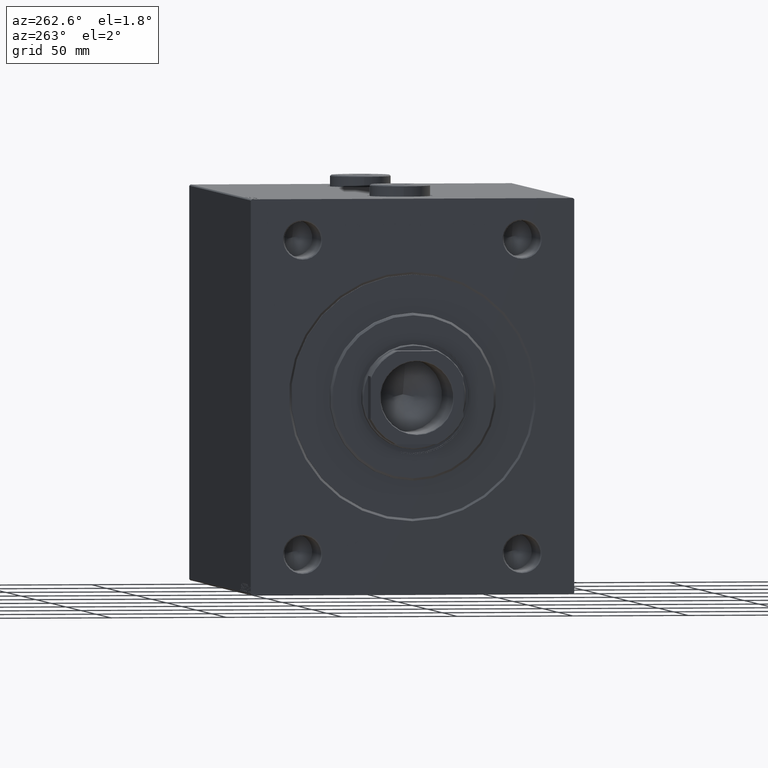
[diagram: clean part render]
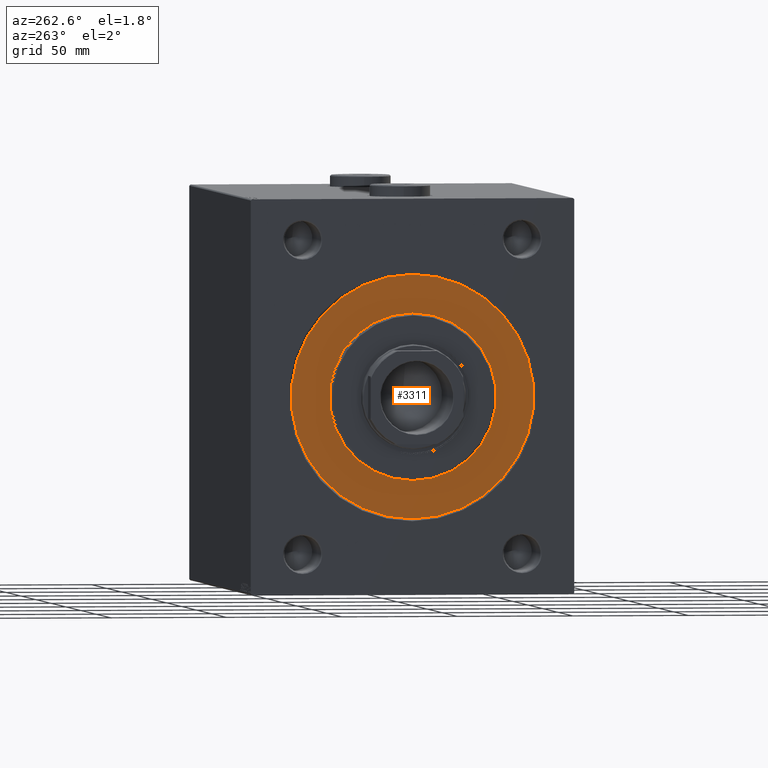
[diagram: same view with one face highlighted and labeled with its STEP entity id]
A machine part, auxiliary view. The second image highlights one B-rep face of the part: STEP entity #3311.
In plain terms, the highlighted planar face has unit normal (1, -0, -0).
Its self-contained STEP definition (entity closure, byte-faithful):
#1160 = CARTESIAN_POINT ( 'NONE',  ( 0.000000000000000000, 4.408728476930470856E-15, -36.00000000000000000 ) ) ;
#2428 = DIRECTION ( 'NONE',  ( 0.000000000000000000, 0.000000000000000000, 1.000000000000000000 ) ) ;
#3311 = ADVANCED_FACE ( 'NONE', ( #44478, #27367 ), #13514, .F. ) ;
#5350 = EDGE_LOOP ( 'NONE', ( #34686, #14675 ) ) ;
#7186 = CARTESIAN_POINT ( 'NONE',  ( 0.000000000000000000, 0.000000000000000000, -52.49999999999999289 ) ) ;
#7301 = DIRECTION ( 'NONE',  ( 0.000000000000000000, 0.000000000000000000, 1.000000000000000000 ) ) ;
#10866 = CIRCLE ( 'NONE', #19705, 52.49999999999999289 ) ;
#12819 = CARTESIAN_POINT ( 'NONE',  ( 0.000000000000000000, 0.000000000000000000, 0.000000000000000000 ) ) ;
#13114 = AXIS2_PLACEMENT_3D ( 'NONE', #39173, #14457, #39404 ) ;
#13514 = PLANE ( 'NONE',  #40665 ) ;
#14457 = DIRECTION ( 'NONE',  ( 1.000000000000000000, -0.000000000000000000, 0.000000000000000000 ) ) ;
#14675 = ORIENTED_EDGE ( 'NONE', *, *, #33541, .F. ) ;
#14737 = VERTEX_POINT ( 'NONE', #42599 ) ;
#16763 = DIRECTION ( 'NONE',  ( 0.000000000000000000, 0.000000000000000000, 1.000000000000000000 ) ) ;
#17751 = DIRECTION ( 'NONE',  ( 0.000000000000000000, 0.000000000000000000, -1.000000000000000000 ) ) ;
#19705 = AXIS2_PLACEMENT_3D ( 'NONE', #19767, #40571, #16763 ) ;
#19767 = CARTESIAN_POINT ( 'NONE',  ( 0.000000000000000000, 0.000000000000000000, 0.000000000000000000 ) ) ;
#20538 = DIRECTION ( 'NONE',  ( 1.000000000000000000, -0.000000000000000000, 0.000000000000000000 ) ) ;
#21443 = CARTESIAN_POINT ( 'NONE',  ( 0.000000000000000000, 0.000000000000000000, 0.000000000000000000 ) ) ;
#23167 = VERTEX_POINT ( 'NONE', #1160 ) ;
#24843 = DIRECTION ( 'NONE',  ( -1.000000000000000000, 0.000000000000000000, 0.000000000000000000 ) ) ;
#26325 = EDGE_CURVE ( 'NONE', #41024, #36483, #27512, .T. ) ;
#27367 = FACE_OUTER_BOUND ( 'NONE', #40263, .T. ) ;
#27512 = CIRCLE ( 'NONE', #31217, 52.49999999999999289 ) ;
#28082 = CARTESIAN_POINT ( 'NONE',  ( 0.000000000000000000, 0.000000000000000000, 0.000000000000000000 ) ) ;
#29211 = CIRCLE ( 'NONE', #31430, 36.00000000000000000 ) ;
#31217 = AXIS2_PLACEMENT_3D ( 'NONE', #28082, #24843, #7301 ) ;
#31430 = AXIS2_PLACEMENT_3D ( 'NONE', #21443, #20538, #17751 ) ;
#33541 = EDGE_CURVE ( 'NONE', #23167, #14737, #29211, .T. ) ;
#34686 = ORIENTED_EDGE ( 'NONE', *, *, #42289, .F. ) ;
#35687 = CARTESIAN_POINT ( 'NONE',  ( 0.000000000000000000, 6.429395695523603167E-15, 52.49999999999999289 ) ) ;
#36483 = VERTEX_POINT ( 'NONE', #7186 ) ;
#37782 = DIRECTION ( 'NONE',  ( -1.000000000000000000, 0.000000000000000000, 0.000000000000000000 ) ) ;
#39173 = CARTESIAN_POINT ( 'NONE',  ( 0.000000000000000000, 0.000000000000000000, 0.000000000000000000 ) ) ;
#39404 = DIRECTION ( 'NONE',  ( 0.000000000000000000, 0.000000000000000000, -1.000000000000000000 ) ) ;
#40263 = EDGE_LOOP ( 'NONE', ( #43517, #40852 ) ) ;
#40571 = DIRECTION ( 'NONE',  ( -1.000000000000000000, 0.000000000000000000, 0.000000000000000000 ) ) ;
#40665 = AXIS2_PLACEMENT_3D ( 'NONE', #12819, #37782, #2428 ) ;
#40813 = EDGE_CURVE ( 'NONE', #36483, #41024, #10866, .T. ) ;
#40852 = ORIENTED_EDGE ( 'NONE', *, *, #26325, .F. ) ;
#41024 = VERTEX_POINT ( 'NONE', #35687 ) ;
#42289 = EDGE_CURVE ( 'NONE', #14737, #23167, #43369, .T. ) ;
#42599 = CARTESIAN_POINT ( 'NONE',  ( 0.000000000000000000, 0.000000000000000000, 36.00000000000000000 ) ) ;
#43369 = CIRCLE ( 'NONE', #13114, 36.00000000000000000 ) ;
#43517 = ORIENTED_EDGE ( 'NONE', *, *, #40813, .F. ) ;
#44478 = FACE_BOUND ( 'NONE', #5350, .T. ) ;